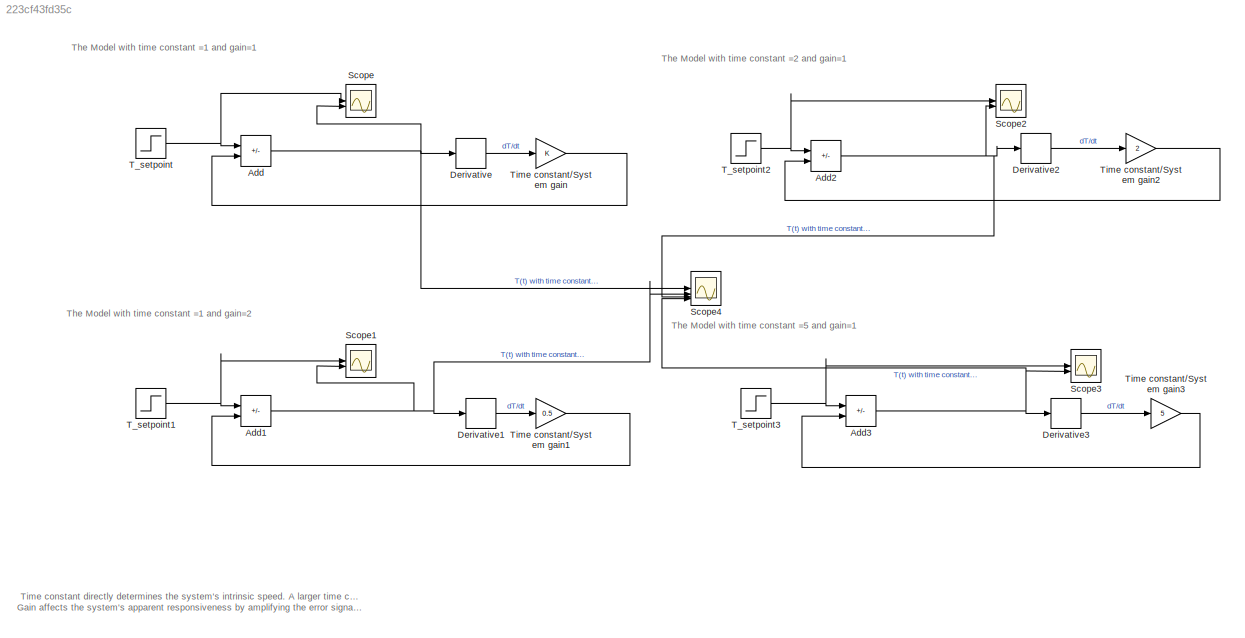
MODEL slx_223cf43fd35c
KIND model
CONFIG AbsTol = auto
CONFIG EnableMultiTasking = off
CONFIG FixedStep = auto
CONFIG MaxStep = 0.001
CONFIG MinStep = auto
CONFIG RelTol = 1e-3
CONFIG SampleTimeConstraint = Unconstrained
CONFIG SolverName = VariableStepAuto
CONFIG StartTime = 0.0
CONFIG StopTime = 30
BLOCK [Sum] Add
  IconShape = rectangular
  Inputs = +-
BLOCK [Sum] Add1
  IconShape = rectangular
  Inputs = +-
BLOCK [Sum] Add2
  IconShape = rectangular
  Inputs = +-
BLOCK [Sum] Add3
  IconShape = rectangular
  Inputs = +-
BLOCK [Derivative] Derivative
BLOCK [Derivative] Derivative1
BLOCK [Derivative] Derivative2
BLOCK [Derivative] Derivative3
BLOCK [Scope] Scope
  Floating = off
  NumInputPorts = 2
  ScopeSpecificationString = Simulink.scopes.TimeScopeBlockCfg('CurrentConfiguration', extmgr.ConfigurationSet(extmgr.Configuration('Core','General UI',true,'FigureColor',[1 1 1]),extmgr.Configuration('Core','Source UI',true),extmgr.Configuration('Sources','WiredSimulink',true),extmgr.Configuration('Visuals','Time Domain',true,'SerializedDisplays',{struct('MinYLimReal','-0.125','MaxYLimReal','1.125','YLabelReal','','MinYLimMa...<+1536ch>
BLOCK [Scope] Scope1
  Floating = off
  NumInputPorts = 2
  ScopeSpecificationString = Simulink.scopes.TimeScopeBlockCfg('CurrentConfiguration', extmgr.ConfigurationSet(extmgr.Configuration('Core','General UI',true,'FigureColor',[1 1 1]),extmgr.Configuration('Core','Source UI',true),extmgr.Configuration('Sources','WiredSimulink',true,'DataLoggingVariableName','ScopeData1'),extmgr.Configuration('Visuals','Time Domain',true,'SerializedDisplays',{struct('MinYLimReal','-0.125','MaxYLimR...<+1576ch>
BLOCK [Scope] Scope2
  Floating = off
  NumInputPorts = 2
  ScopeSpecificationString = Simulink.scopes.TimeScopeBlockCfg('CurrentConfiguration', extmgr.ConfigurationSet(extmgr.Configuration('Core','General UI',true,'FigureColor',[1 1 1]),extmgr.Configuration('Core','Source UI',true),extmgr.Configuration('Sources','WiredSimulink',true,'DataLoggingVariableName','ScopeData2'),extmgr.Configuration('Visuals','Time Domain',true,'SerializedDisplays',{struct('MinYLimReal','-0.125','MaxYLimR...<+1576ch>
BLOCK [Scope] Scope3
  Floating = off
  NumInputPorts = 2
  ScopeSpecificationString = Simulink.scopes.TimeScopeBlockCfg('CurrentConfiguration', extmgr.ConfigurationSet(extmgr.Configuration('Core','General UI',true,'FigureColor',[1 1 1]),extmgr.Configuration('Core','Source UI',true),extmgr.Configuration('Sources','WiredSimulink',true,'DataLoggingVariableName','ScopeData3'),extmgr.Configuration('Visuals','Time Domain',true,'SerializedDisplays',{struct('MinYLimReal','-0.125','MaxYLimR...<+1576ch>
BLOCK [Scope] Scope4
  Floating = off
  NumInputPorts = 4
  ScopeSpecificationString = Simulink.scopes.TimeScopeBlockCfg('CurrentConfiguration', extmgr.ConfigurationSet(extmgr.Configuration('Core','General UI',true,'FigureColor',[1 1 1]),extmgr.Configuration('Core','Source UI',true),extmgr.Configuration('Sources','WiredSimulink',true,'DataLoggingVariableName','ScopeData4'),extmgr.Configuration('Visuals','Time Domain',true,'SerializedDisplays',{struct('MinYLimReal','-0.125','MaxYLimR...<+4210ch>
BLOCK [Step] T_setpoint
  SampleTime = 0
  Time = 2
BLOCK [Step] T_setpoint1
  SampleTime = 0
  Time = 2
BLOCK [Step] T_setpoint2
  SampleTime = 0
  Time = 2
BLOCK [Step] T_setpoint3
  SampleTime = 0
  Time = 2
BLOCK [Gain] Time constant//System gain
BLOCK [Gain] Time constant//System gain1
  Gain = 0.5
BLOCK [Gain] Time constant//System gain2
  Gain = 2
BLOCK [Gain] Time constant//System gain3
  Gain = 5
ANNOTATION (root): The Model with time constant =1 and gain=1
ANNOTATION (root): The Model with time constant =1 and gain=2
ANNOTATION (root): The Model with time constant =2 and gain=1
ANNOTATION (root): The Model with time constant =5 and gain=1
ANNOTATION (root): Time constant directly determines the system's intrinsic speed . A larger time constant implies a slower system, and a smaller time constant indicates a faster system. Gain affects the system's apparent responsiveness by amplifying the error signal, but it doesn't directly influence the time constant . A higher gain can make the system seem faster while keeping the same time constant, and vice ver...<+3ch>
NET Add1:1 -> Derivative1:1, Scope1:2, Scope4:2
NET Add2:1 -> Derivative2:1, Scope2:2, Scope4:3
NET Add3:1 -> Derivative3:1, Scope3:2, Scope4:4
NET Add:1 -> Derivative:1, Scope4:1, Scope:2
LINE Derivative1:1 -> Time constant//System gain1:1
LINE Derivative2:1 -> Time constant//System gain2:1
LINE Derivative3:1 -> Time constant//System gain3:1
LINE Derivative:1 -> Time constant//System gain:1
NET T_setpoint1:1 -> Add1:1, Scope1:1
NET T_setpoint2:1 -> Add2:1, Scope2:1
NET T_setpoint3:1 -> Add3:1, Scope3:1
NET T_setpoint:1 -> Add:1, Scope:1
LINE Time constant//System gain1:1 -> Add1:2
LINE Time constant//System gain2:1 -> Add2:2
LINE Time constant//System gain3:1 -> Add3:2
LINE Time constant//System gain:1 -> Add:2
note: NET lines group one-source signal fan-out (src -> all destinations, sorted); 1:1 wires keep LINE
